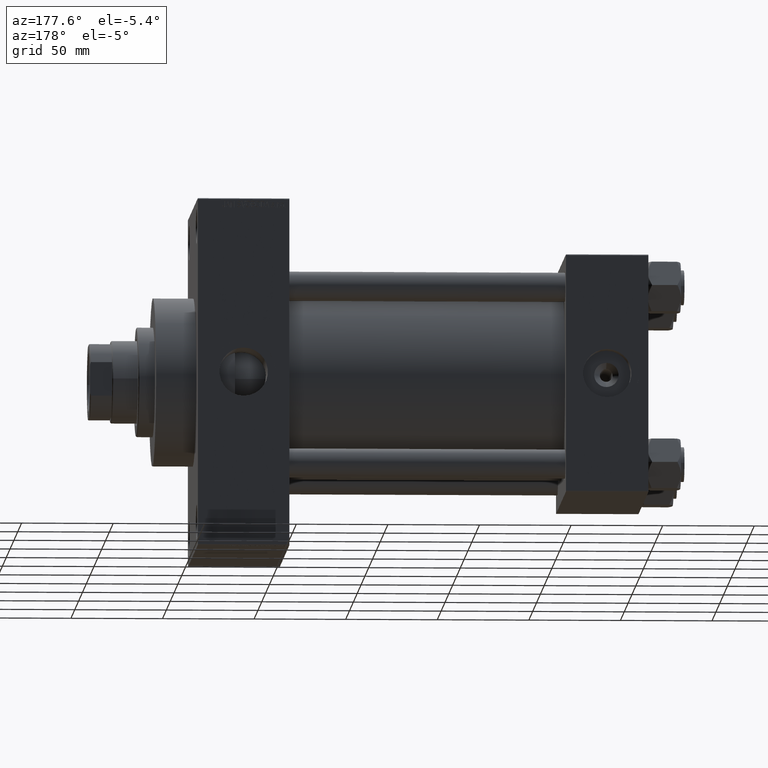
[diagram: clean part render]
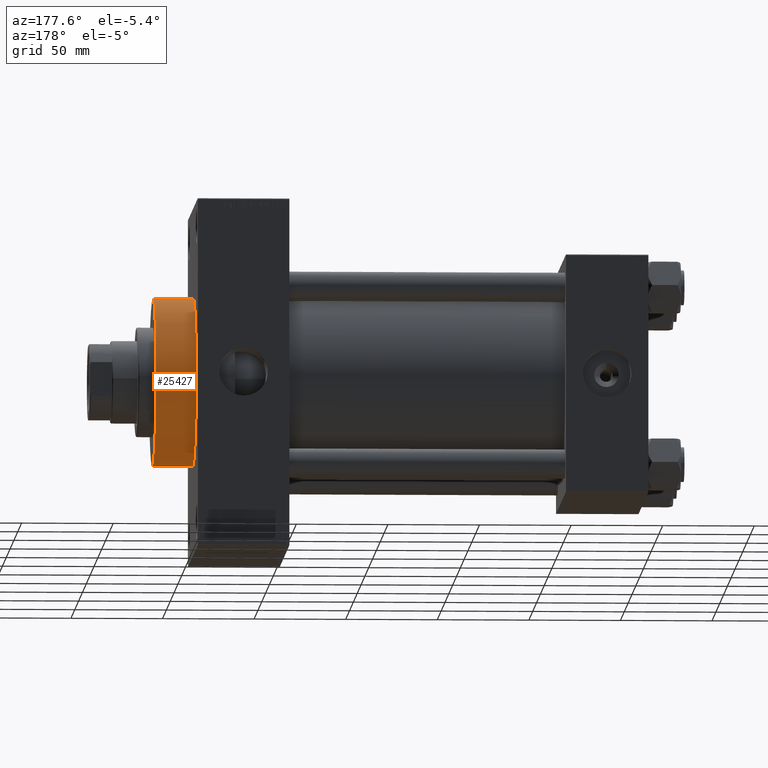
[diagram: same view with one face highlighted and labeled with its STEP entity id]
A machine part, auxiliary view. The second image highlights one B-rep face of the part: STEP entity #25427.
In plain terms, the highlighted cylindrical surface (partial cylindrical patch) has radius 46 mm, axis along (-1, -0, -0).
Its self-contained STEP definition (entity closure, byte-faithful):
#978 = DIRECTION ( 'NONE',  ( -1.000000000000000000, -0.000000000000000000, -0.000000000000000000 ) ) ;
#1813 = VERTEX_POINT ( 'NONE', #43743 ) ;
#3583 = CARTESIAN_POINT ( 'NONE',  ( 268.0000000000000000, 0.000000000000000000, 46.00000000000000000 ) ) ;
#5073 = VERTEX_POINT ( 'NONE', #35129 ) ;
#6282 = DIRECTION ( 'NONE',  ( 0.000000000000000000, 0.000000000000000000, 1.000000000000000000 ) ) ;
#6700 = CARTESIAN_POINT ( 'NONE',  ( 268.0000000000000000, 5.633375276077824704E-15, -46.00000000000000000 ) ) ;
#11108 = EDGE_CURVE ( 'NONE', #1813, #16831, #42453, .T. ) ;
#12090 = VECTOR ( 'NONE', #16855, 1000.000000000000000 ) ;
#12811 = DIRECTION ( 'NONE',  ( 1.000000000000000000, 0.000000000000000000, 0.000000000000000000 ) ) ;
#12960 = EDGE_CURVE ( 'NONE', #28558, #5073, #42537, .T. ) ;
#15138 = VECTOR ( 'NONE', #978, 1000.000000000000000 ) ;
#15223 = AXIS2_PLACEMENT_3D ( 'NONE', #16839, #12811, #20373 ) ;
#15410 = EDGE_LOOP ( 'NONE', ( #26309, #19278, #16464, #44468 ) ) ;
#15957 = DIRECTION ( 'NONE',  ( 0.000000000000000000, 0.000000000000000000, -1.000000000000000000 ) ) ;
#16464 = ORIENTED_EDGE ( 'NONE', *, *, #12960, .T. ) ;
#16604 = LINE ( 'NONE', #6700, #12090 ) ;
#16831 = VERTEX_POINT ( 'NONE', #3583 ) ;
#16839 = CARTESIAN_POINT ( 'NONE',  ( 246.0000000000000000, 0.000000000000000000, 0.000000000000000000 ) ) ;
#16855 = DIRECTION ( 'NONE',  ( -1.000000000000000000, -0.000000000000000000, -0.000000000000000000 ) ) ;
#18343 = AXIS2_PLACEMENT_3D ( 'NONE', #46425, #39106, #15957 ) ;
#19278 = ORIENTED_EDGE ( 'NONE', *, *, #49752, .T. ) ;
#19355 = LINE ( 'NONE', #20100, #15138 ) ;
#20100 = CARTESIAN_POINT ( 'NONE',  ( 268.0000000000000000, 0.000000000000000000, 46.00000000000000000 ) ) ;
#20373 = DIRECTION ( 'NONE',  ( 0.000000000000000000, 0.000000000000000000, -1.000000000000000000 ) ) ;
#21156 = CYLINDRICAL_SURFACE ( 'NONE', #37923, 46.00000000000000000 ) ;
#24337 = CARTESIAN_POINT ( 'NONE',  ( 246.0000000000000000, 5.633375276077824704E-15, -46.00000000000000000 ) ) ;
#24951 = DIRECTION ( 'NONE',  ( -1.000000000000000000, -0.000000000000000000, -0.000000000000000000 ) ) ;
#25193 = CARTESIAN_POINT ( 'NONE',  ( 268.0000000000000000, 0.000000000000000000, 0.000000000000000000 ) ) ;
#25427 = ADVANCED_FACE ( 'NONE', ( #25935 ), #21156, .T. ) ;
#25935 = FACE_OUTER_BOUND ( 'NONE', #15410, .T. ) ;
#26309 = ORIENTED_EDGE ( 'NONE', *, *, #11108, .F. ) ;
#28558 = VERTEX_POINT ( 'NONE', #24337 ) ;
#35129 = CARTESIAN_POINT ( 'NONE',  ( 246.0000000000000000, 0.000000000000000000, 46.00000000000000000 ) ) ;
#37923 = AXIS2_PLACEMENT_3D ( 'NONE', #25193, #24951, #6282 ) ;
#39106 = DIRECTION ( 'NONE',  ( 1.000000000000000000, 0.000000000000000000, 0.000000000000000000 ) ) ;
#42441 = EDGE_CURVE ( 'NONE', #16831, #5073, #19355, .T. ) ;
#42453 = CIRCLE ( 'NONE', #18343, 46.00000000000000000 ) ;
#42537 = CIRCLE ( 'NONE', #15223, 46.00000000000000000 ) ;
#43743 = CARTESIAN_POINT ( 'NONE',  ( 268.0000000000000000, 5.633375276077824704E-15, -46.00000000000000000 ) ) ;
#44468 = ORIENTED_EDGE ( 'NONE', *, *, #42441, .F. ) ;
#46425 = CARTESIAN_POINT ( 'NONE',  ( 268.0000000000000000, 0.000000000000000000, 0.000000000000000000 ) ) ;
#49752 = EDGE_CURVE ( 'NONE', #1813, #28558, #16604, .T. ) ;